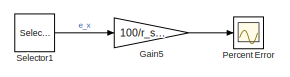
[diagram: root canvas - part 1/2, top right region]
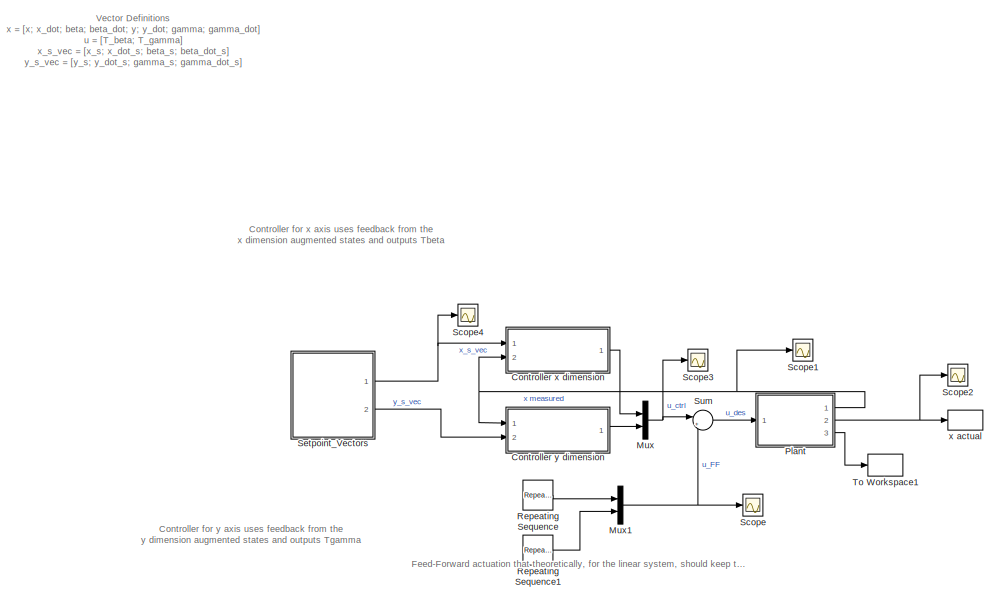
[diagram: root canvas - part 2/2, bottom left region]
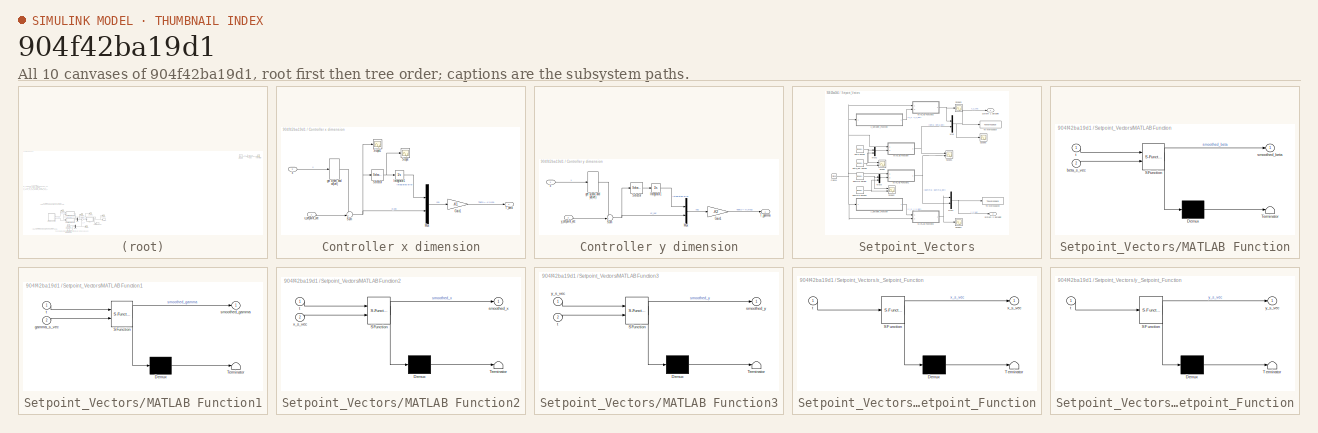
[diagram: thumbnail index - all 10 canvases of the model, root first then tree order]
MODEL slx_904f42ba19d1
KIND model
CONFIG AbsTol = auto
CONFIG EnableMultiTasking = off
CONFIG FixedStep = auto
CONFIG MaxStep = auto
CONFIG MinStep = auto
CONFIG RelTol = 1e-9
CONFIG SampleTimeConstraint = Unconstrained
CONFIG SolverName = VariableStepAuto
CONFIG StartTime = 0.0
CONFIG StopTime = t_sim
BLOCK [SubSystem] Controller x dimension
  Ports = [2, 1]
  RequestExecContextInheritance = off
BLOCK [Gain] Controller x dimension/Gain1
  Gain = -K1
  Multiplication = Matrix(K*u)
BLOCK [Integrator] Controller x dimension/Integrator1
  Ports = [1, 1]
BLOCK [Mux] Controller x dimension/Mux
  DisplayOption = bar
  Inputs = 2
  Ports = [2, 1]
BLOCK [Scope] Controller x dimension/Scope
  Floating = off
  NumInputPorts = 1
  Ports = [1]
  ScopeSpecificationString = Simulink.scopes.TimeScopeBlockCfg('CurrentConfiguration', extmgr.ConfigurationSet(extmgr.Configuration('Core','General UI',true),extmgr.Configuration('Core','Source UI',true),extmgr.Configuration('Sources','WiredSimulink',true,'DataLoggingVariableName','ScopeData1'),extmgr.Configuration('Visuals','Time Domain',true,'SerializedDisplays',{struct('MinYLimReal','-269.05253','MaxYLimReal','29.93535','Y...<+1421ch>
BLOCK [Scope] Controller x dimension/Scope1
  Floating = off
  NumInputPorts = 1
  Ports = [1]
  ScopeSpecificationString = Simulink.scopes.TimeScopeBlockCfg('CurrentConfiguration', extmgr.ConfigurationSet(extmgr.Configuration('Core','General UI',true),extmgr.Configuration('Core','Source UI',true),extmgr.Configuration('Sources','WiredSimulink',true,'DataLoggingVariableName','ScopeData3'),extmgr.Configuration('Visuals','Time Domain',true,'SerializedDisplays',{struct('MinYLimReal','-0.36432','MaxYLimReal','0.58765','YLab...<+1419ch>
BLOCK [Selector] Controller x dimension/Selector
  IndexOptions = Index vector (dialog)
  Indices = [1 ]
  InputPortWidth = 4
  OutputSizes = 1
  Ports = [1, 1]
BLOCK [Sum] Controller x dimension/Sum
  Inputs = -+|
  Ports = [2, 1]
BLOCK [Outport] Controller x dimension/T_beta
BLOCK [Selector] Controller x dimension/get x(pos) and xd(vel)
  IndexOptions = Index vector (dialog)
  Indices = [1:4]
  InputPortWidth = 8
  OutputSizes = 1
  Ports = [1, 1]
BLOCK [Inport] Controller x dimension/x
  Port = 2
BLOCK [Inport] Controller x dimension/x_setpoint_vec
BLOCK [SubSystem] Controller y dimension
  NameLocation = top
  Ports = [2, 1]
  RequestExecContextInheritance = off
BLOCK [Gain] Controller y dimension/Gain1
  Gain = -K2
  Multiplication = Matrix(K*u)
BLOCK [Integrator] Controller y dimension/Integrator1
  Ports = [1, 1]
BLOCK [Mux] Controller y dimension/Mux
  DisplayOption = bar
  Inputs = 2
  Ports = [2, 1]
BLOCK [Selector] Controller y dimension/Selector
  IndexOptions = Index vector (dialog)
  Indices = [1 ]
  InputPortWidth = 4
  OutputSizes = 1
  Ports = [1, 1]
BLOCK [Sum] Controller y dimension/Sum
  Inputs = -+|
  Ports = [2, 1]
BLOCK [Outport] Controller y dimension/T_gamma
BLOCK [Selector] Controller y dimension/get y(pos) and yd(vel)
  IndexOptions = Index vector (dialog)
  Indices = [5:8]
  InputPortWidth = 8
  OutputSizes = 1
  Ports = [1, 1]
BLOCK [Inport] Controller y dimension/x
BLOCK [Inport] Controller y dimension/y_setpoint_vec
  Port = 2
BLOCK [Gain] Gain5
  Commented = on
  Gain = 100/r_sim
BLOCK [Mux] Mux
  DisplayOption = bar
  Inputs = 2
  Ports = [2, 1]
BLOCK [Mux] Mux1
  DisplayOption = bar
  Inputs = 2
  Ports = [2, 1]
BLOCK [Scope] Percent Error
  Commented = on
  Floating = off
  NumInputPorts = 1
  Ports = [1]
  ScopeSpecificationString = Simulink.scopes.TimeScopeBlockCfg('CurrentConfiguration', extmgr.ConfigurationSet(extmgr.Configuration('Core','General UI',true),extmgr.Configuration('Core','Source UI',true),extmgr.Configuration('Sources','WiredSimulink',true,'DataLoggingVariableName','ScopeData2'),extmgr.Configuration('Visuals','Time Domain',true,'SerializedDisplays',{struct('MinYLimReal','-1.29449','MaxYLimReal','1.86814','YLab...<+1556ch>
BLOCK [ModelReference] Plant
  ModelNameDialog = Plant
  ModelReferenceVersion = 1.106
  Ports = [1, 3]
BLOCK [Reference] Repeating Sequence  REF=simulink/Sources/Repeating
Sequence
  Ports = [0, 1]
  SourceBlock = simulink/Sources/Repeating\nSequence
  SourceProductBaseCode = SL
  SourceType = Repeating table
BLOCK [Reference] Repeating Sequence1  REF=simulink/Sources/Repeating
Sequence
  Ports = [0, 1]
  SourceBlock = simulink/Sources/Repeating\nSequence
  SourceProductBaseCode = SL
  SourceType = Repeating table
BLOCK [Scope] Scope
  Floating = off
  NumInputPorts = 1
  Ports = [1]
  ScopeSpecificationString = Simulink.scopes.TimeScopeBlockCfg('CurrentConfiguration', extmgr.ConfigurationSet(extmgr.Configuration('Core','General UI',true),extmgr.Configuration('Core','Source UI',true),extmgr.Configuration('Sources','WiredSimulink',true,'DataLoggingVariableName','ScopeData1'),extmgr.Configuration('Visuals','Time Domain',true,'SerializedDisplays',{struct('MinYLimReal','-0.72111','MaxYLimReal','0.72111','YLab...<+1429ch>
BLOCK [Scope] Scope1
  Floating = off
  NumInputPorts = 1
  Ports = [1]
  ScopeSpecificationString = Simulink.scopes.TimeScopeBlockCfg('CurrentConfiguration', extmgr.ConfigurationSet(extmgr.Configuration('Core','General UI',true),extmgr.Configuration('Core','Source UI',true),extmgr.Configuration('Sources','WiredSimulink',true,'DataLoggingVariableName','ScopeData1'),extmgr.Configuration('Visuals','Time Domain',true,'SerializedDisplays',{struct('MinYLimReal','-87.01259','MaxYLimReal','28.66961','YL...<+1526ch>
BLOCK [Scope] Scope2
  Floating = off
  NumInputPorts = 1
  Ports = [1]
  ScopeSpecificationString = Simulink.scopes.TimeScopeBlockCfg('CurrentConfiguration', extmgr.ConfigurationSet(extmgr.Configuration('Core','General UI',true),extmgr.Configuration('Core','Source UI',true),extmgr.Configuration('Sources','WiredSimulink',true,'DataLoggingVariableName','ScopeData2'),extmgr.Configuration('Visuals','Time Domain',true,'SerializedDisplays',{struct('MinYLimReal','-0.50678','MaxYLimReal','0.55382','YLab...<+1459ch>
BLOCK [Scope] Scope3
  Floating = off
  NumInputPorts = 1
  Ports = [1]
  ScopeSpecificationString = Simulink.scopes.TimeScopeBlockCfg('CurrentConfiguration', extmgr.ConfigurationSet(extmgr.Configuration('Core','General UI',true),extmgr.Configuration('Core','Source UI',true),extmgr.Configuration('Sources','WiredSimulink',true,'DataLoggingVariableName','ScopeData4'),extmgr.Configuration('Visuals','Time Domain',true,'SerializedDisplays',{struct('MinYLimReal','-7.34684','MaxYLimReal','10.96364','YLa...<+1426ch>
BLOCK [Scope] Scope4
  Floating = off
  NumInputPorts = 1
  Ports = [1]
  ScopeSpecificationString = Simulink.scopes.TimeScopeBlockCfg('CurrentConfiguration', extmgr.ConfigurationSet(extmgr.Configuration('Core','General UI',true),extmgr.Configuration('Core','Source UI',true),extmgr.Configuration('Sources','WiredSimulink',true,'DataLoggingVariableName','ScopeData2'),extmgr.Configuration('Visuals','Time Domain',true,'SerializedDisplays',{struct('MinYLimReal','-0.62093','MaxYLimReal','0.61341','YLab...<+1446ch>
BLOCK [Selector] Selector1
  Commented = on
  IndexOptions = Index vector (dialog)
  Indices = [1]
  InputPortWidth = 5
  OutputSizes = 1
  Ports = [1, 1]
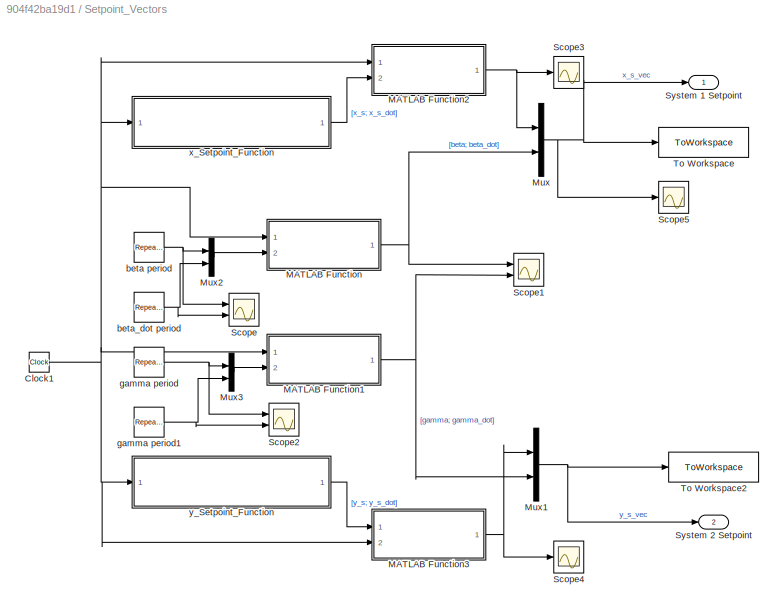
BLOCK [SubSystem] Setpoint_Vectors
  Ports = [0, 2]
  RequestExecContextInheritance = off
BLOCK [Clock] Setpoint_Vectors/Clock1
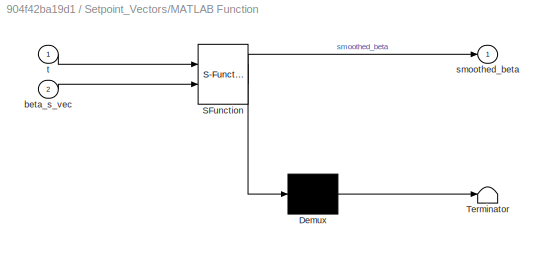
BLOCK [SubSystem] Setpoint_Vectors/MATLAB Function
  ErrorFcn = Stateflow.Translate.translate
  PermitHierarchicalResolution = ExplicitOnly
  Ports = [2, 1]
  RequestExecContextInheritance = off
  SFBlockType = MATLAB Function
  TreatAsAtomicUnit = on
BLOCK [Demux] Setpoint_Vectors/MATLAB Function/ Demux 
  Outputs = 1
  Ports = [1, 1]
BLOCK [S-Function] Setpoint_Vectors/MATLAB Function/ SFunction 
  EnableBusSupport = on
  FunctionName = sf_sfun
  Parameters = Tau,x_0
  PortCounts = [2 2]
  Ports = [2, 2]
  SFcnIsStateOwnerBlock = off
  SFunctionDeploymentMode = off
  Tag = Stateflow S-Function 1
BLOCK [Terminator] Setpoint_Vectors/MATLAB Function/ Terminator 
BLOCK [Inport] Setpoint_Vectors/MATLAB Function/beta_s_vec
  Port = 2
BLOCK [Outport] Setpoint_Vectors/MATLAB Function/smoothed_beta
BLOCK [Inport] Setpoint_Vectors/MATLAB Function/t
BLOCK [SubSystem] Setpoint_Vectors/MATLAB Function1
  ErrorFcn = Stateflow.Translate.translate
  PermitHierarchicalResolution = ExplicitOnly
  Ports = [2, 1]
  RequestExecContextInheritance = off
  SFBlockType = MATLAB Function
  TreatAsAtomicUnit = on
BLOCK [Demux] Setpoint_Vectors/MATLAB Function1/ Demux 
  Outputs = 1
  Ports = [1, 1]
BLOCK [S-Function] Setpoint_Vectors/MATLAB Function1/ SFunction 
  EnableBusSupport = on
  FunctionName = sf_sfun
  Parameters = Tau,x_0
  PortCounts = [2 2]
  Ports = [2, 2]
  SFcnIsStateOwnerBlock = off
  SFunctionDeploymentMode = off
  Tag = Stateflow S-Function 4
BLOCK [Terminator] Setpoint_Vectors/MATLAB Function1/ Terminator 
BLOCK [Inport] Setpoint_Vectors/MATLAB Function1/gamma_s_vec
  Port = 2
BLOCK [Outport] Setpoint_Vectors/MATLAB Function1/smoothed_gamma
BLOCK [Inport] Setpoint_Vectors/MATLAB Function1/t
BLOCK [SubSystem] Setpoint_Vectors/MATLAB Function2
  ErrorFcn = Stateflow.Translate.translate
  PermitHierarchicalResolution = ExplicitOnly
  Ports = [2, 1]
  RequestExecContextInheritance = off
  SFBlockType = MATLAB Function
  TreatAsAtomicUnit = on
BLOCK [Demux] Setpoint_Vectors/MATLAB Function2/ Demux 
  Outputs = 1
  Ports = [1, 1]
BLOCK [S-Function] Setpoint_Vectors/MATLAB Function2/ SFunction 
  EnableBusSupport = on
  FunctionName = sf_sfun
  Parameters = Tau,x_0
  PortCounts = [2 2]
  Ports = [2, 2]
  SFcnIsStateOwnerBlock = off
  SFunctionDeploymentMode = off
  Tag = Stateflow S-Function 6
BLOCK [Terminator] Setpoint_Vectors/MATLAB Function2/ Terminator 
BLOCK [Outport] Setpoint_Vectors/MATLAB Function2/smoothed_x
BLOCK [Inport] Setpoint_Vectors/MATLAB Function2/t
BLOCK [Inport] Setpoint_Vectors/MATLAB Function2/x_s_vec
  Port = 2
BLOCK [SubSystem] Setpoint_Vectors/MATLAB Function3
  ErrorFcn = Stateflow.Translate.translate
  PermitHierarchicalResolution = ExplicitOnly
  Ports = [2, 1]
  RequestExecContextInheritance = off
  SFBlockType = MATLAB Function
  TreatAsAtomicUnit = on
BLOCK [Demux] Setpoint_Vectors/MATLAB Function3/ Demux 
  Outputs = 1
  Ports = [1, 1]
BLOCK [S-Function] Setpoint_Vectors/MATLAB Function3/ SFunction 
  EnableBusSupport = on
  FunctionName = sf_sfun
  Parameters = Tau,x_0
  PortCounts = [2 2]
  Ports = [2, 2]
  SFcnIsStateOwnerBlock = off
  SFunctionDeploymentMode = off
  Tag = Stateflow S-Function 7
BLOCK [Terminator] Setpoint_Vectors/MATLAB Function3/ Terminator 
BLOCK [Outport] Setpoint_Vectors/MATLAB Function3/smoothed_y
BLOCK [Inport] Setpoint_Vectors/MATLAB Function3/t
  Port = 2
BLOCK [Inport] Setpoint_Vectors/MATLAB Function3/y_s_vec
BLOCK [Mux] Setpoint_Vectors/Mux
  DisplayOption = bar
  Inputs = 2
  Ports = [2, 1]
BLOCK [Mux] Setpoint_Vectors/Mux1
  DisplayOption = bar
  Inputs = 2
  Ports = [2, 1]
BLOCK [Mux] Setpoint_Vectors/Mux2
  DisplayOption = bar
  Inputs = 2
  Ports = [2, 1]
BLOCK [Mux] Setpoint_Vectors/Mux3
  DisplayOption = bar
  Inputs = 2
  Ports = [2, 1]
BLOCK [Scope] Setpoint_Vectors/Scope
  Floating = off
  NumInputPorts = 2
  Ports = [2]
  ScopeSpecificationString = Simulink.scopes.TimeScopeBlockCfg('CurrentConfiguration', extmgr.ConfigurationSet(extmgr.Configuration('Core','General UI',true),extmgr.Configuration('Core','Source UI',true),extmgr.Configuration('Sources','WiredSimulink',true,'DataLoggingVariableName','ScopeData1'),extmgr.Configuration('Visuals','Time Domain',true,'SerializedDisplays',{struct('MinYLimReal','-0.62223','MaxYLimReal','0.62223','YLab...<+1413ch>
BLOCK [Scope] Setpoint_Vectors/Scope1
  Floating = off
  NumInputPorts = 2
  Ports = [2]
  ScopeSpecificationString = Simulink.scopes.TimeScopeBlockCfg('CurrentConfiguration', extmgr.ConfigurationSet(extmgr.Configuration('Core','General UI',true),extmgr.Configuration('Core','Source UI',true),extmgr.Configuration('Sources','WiredSimulink',true,'DataLoggingVariableName','ScopeData2'),extmgr.Configuration('Visuals','Time Domain',true,'SerializedDisplays',{struct('MinYLimReal','-0.63632','MaxYLimReal','0.63632','YLab...<+1499ch>
BLOCK [Scope] Setpoint_Vectors/Scope2
  Floating = off
  NumInputPorts = 2
  Ports = [2]
  ScopeSpecificationString = Simulink.scopes.TimeScopeBlockCfg('CurrentConfiguration', extmgr.ConfigurationSet(extmgr.Configuration('Core','General UI',true),extmgr.Configuration('Core','Source UI',true),extmgr.Configuration('Sources','WiredSimulink',true,'DataLoggingVariableName','ScopeData3'),extmgr.Configuration('Visuals','Time Domain',true,'SerializedDisplays',{struct('MinYLimReal','-0.63632','MaxYLimReal','0.63632','YLab...<+1412ch>
BLOCK [Scope] Setpoint_Vectors/Scope3
  Floating = off
  NumInputPorts = 1
  Ports = [1]
  ScopeSpecificationString = Simulink.scopes.TimeScopeBlockCfg('CurrentConfiguration', extmgr.ConfigurationSet(extmgr.Configuration('Core','General UI',true),extmgr.Configuration('Core','Source UI',true),extmgr.Configuration('Sources','WiredSimulink',true,'DataLoggingVariableName','ScopeData5'),extmgr.Configuration('Visuals','Time Domain',true,'SerializedDisplays',{struct('MinYLimReal','-0.41394','MaxYLimReal','0.41394','YLab...<+1398ch>
BLOCK [Scope] Setpoint_Vectors/Scope4
  Floating = off
  NumInputPorts = 1
  Ports = [1]
  ScopeSpecificationString = Simulink.scopes.TimeScopeBlockCfg('CurrentConfiguration', extmgr.ConfigurationSet(extmgr.Configuration('Core','General UI',true),extmgr.Configuration('Core','Source UI',true),extmgr.Configuration('Sources','WiredSimulink',true,'DataLoggingVariableName','ScopeData1'),extmgr.Configuration('Visuals','Time Domain',true,'SerializedDisplays',{struct('MinYLimReal','-0.47124','MaxYLimReal','0.47124','YLab...<+1453ch>
BLOCK [Scope] Setpoint_Vectors/Scope5
  Floating = off
  NumInputPorts = 1
  Ports = [1]
  ScopeSpecificationString = Simulink.scopes.TimeScopeBlockCfg('CurrentConfiguration', extmgr.ConfigurationSet(extmgr.Configuration('Core','General UI',true),extmgr.Configuration('Core','Source UI',true),extmgr.Configuration('Sources','WiredSimulink',true,'DataLoggingVariableName','ScopeData3'),extmgr.Configuration('Visuals','Time Domain',true,'SerializedDisplays',{struct('MinYLimReal','-0.41394','MaxYLimReal','0.41394','YLab...<+1398ch>
BLOCK [Outport] Setpoint_Vectors/System 1 Setpoint
BLOCK [Outport] Setpoint_Vectors/System 2 Setpoint
  Port = 2
BLOCK [ToWorkspace] Setpoint_Vectors/To Workspace
  FixptAsFi = on
  MaxDataPoints = inf
  Ports = [1]
  SampleTime = -1
  VariableName = x_s_vec
BLOCK [ToWorkspace] Setpoint_Vectors/To Workspace2
  FixptAsFi = on
  MaxDataPoints = inf
  Ports = [1]
  SampleTime = -1
  VariableName = y_s_vec
BLOCK [Reference] Setpoint_Vectors/beta period  REF=simulink/Sources/Repeating
Sequence
  Ports = [0, 1]
  SourceBlock = simulink/Sources/Repeating\nSequence
  SourceProductBaseCode = SL
  SourceType = Repeating table
BLOCK [Reference] Setpoint_Vectors/beta_dot period  REF=simulink/Sources/Repeating
Sequence
  Ports = [0, 1]
  SourceBlock = simulink/Sources/Repeating\nSequence
  SourceProductBaseCode = SL
  SourceType = Repeating table
BLOCK [Reference] Setpoint_Vectors/gamma period  REF=simulink/Sources/Repeating
Sequence
  Ports = [0, 1]
  SourceBlock = simulink/Sources/Repeating\nSequence
  SourceProductBaseCode = SL
  SourceType = Repeating table
BLOCK [Reference] Setpoint_Vectors/gamma period1  REF=simulink/Sources/Repeating
Sequence
  Ports = [0, 1]
  SourceBlock = simulink/Sources/Repeating\nSequence
  SourceProductBaseCode = SL
  SourceType = Repeating table
BLOCK [SubSystem] Setpoint_Vectors/x_Setpoint_Function
  ErrorFcn = Stateflow.Translate.translate
  PermitHierarchicalResolution = ExplicitOnly
  Ports = [1, 1]
  RequestExecContextInheritance = off
  SFBlockType = MATLAB Function
  TreatAsAtomicUnit = on
BLOCK [Demux] Setpoint_Vectors/x_Setpoint_Function/ Demux 
  Outputs = 1
  Ports = [1, 1]
BLOCK [S-Function] Setpoint_Vectors/x_Setpoint_Function/ SFunction 
  EnableBusSupport = on
  FunctionName = sf_sfun
  PortCounts = [1 2]
  Ports = [1, 2]
  SFcnIsStateOwnerBlock = off
  SFunctionDeploymentMode = off
  Tag = Stateflow S-Function 2
BLOCK [Terminator] Setpoint_Vectors/x_Setpoint_Function/ Terminator 
BLOCK [Inport] Setpoint_Vectors/x_Setpoint_Function/t
BLOCK [Outport] Setpoint_Vectors/x_Setpoint_Function/x_s_vec
BLOCK [SubSystem] Setpoint_Vectors/y_Setpoint_Function
  ErrorFcn = Stateflow.Translate.translate
  PermitHierarchicalResolution = ExplicitOnly
  Ports = [1, 1]
  RequestExecContextInheritance = off
  SFBlockType = MATLAB Function
  TreatAsAtomicUnit = on
BLOCK [Demux] Setpoint_Vectors/y_Setpoint_Function/ Demux 
  Outputs = 1
  Ports = [1, 1]
BLOCK [S-Function] Setpoint_Vectors/y_Setpoint_Function/ SFunction 
  EnableBusSupport = on
  FunctionName = sf_sfun
  PortCounts = [1 2]
  Ports = [1, 2]
  SFcnIsStateOwnerBlock = off
  SFunctionDeploymentMode = off
  Tag = Stateflow S-Function 3
BLOCK [Terminator] Setpoint_Vectors/y_Setpoint_Function/ Terminator 
BLOCK [Inport] Setpoint_Vectors/y_Setpoint_Function/t
BLOCK [Outport] Setpoint_Vectors/y_Setpoint_Function/y_s_vec
BLOCK [Sum] Sum
  Inputs = |++
  Ports = [2, 1]
BLOCK [ToWorkspace] To Workspace1
  FixptAsFi = on
  MaxDataPoints = inf
  Ports = [1]
  SampleTime = -1
  VariableName = u
BLOCK [ToWorkspace] x actual
  FixptAsFi = on
  MaxDataPoints = inf
  Ports = [1]
  SampleTime = -1
  VariableName = x
ANNOTATION (root): Vector Definitions x = [x; x_dot; beta; beta_dot; y; y_dot; gamma; gamma_dot] u = [T_beta; T_gamma] x_s_vec = [x_s; x_dot_s; beta_s; beta_dot_s ] y_s_vec = [y_s; y_dot_s; gamma_s; gamma_dot_s ]
ANNOTATION (root): Controller for x axis uses feedback from the x dimension augmented states and outputs Tbeta
ANNOTATION (root): Controller for y axis uses feedback from the y dimension augmented states and outputs Tgamma
ANNOTATION (root): Feed-Forward actuation that theoretically, for the linear system, should keep the system on the setpoint if it's there already
LINE Controller x dimension/Gain1:1 -> Controller x dimension/T_beta:1
LINE Controller x dimension/Integrator1:1 -> Controller x dimension/Mux:1
LINE Controller x dimension/Mux:1 -> Controller x dimension/Gain1:1
NET Controller x dimension/Selector:1 -> Controller x dimension/Integrator1:1, Controller x dimension/Scope:1
NET Controller x dimension/Sum:1 -> Controller x dimension/Mux:2, Controller x dimension/Scope1:1, Controller x dimension/Selector:1
LINE Controller x dimension/get x(pos) and xd(vel):1 -> Controller x dimension/Sum:1
LINE Controller x dimension/x:1 -> Controller x dimension/get x(pos) and xd(vel):1
LINE Controller x dimension/x_setpoint_vec:1 -> Controller x dimension/Sum:2
LINE Controller x dimension:1 -> Mux:1
LINE Controller y dimension/Gain1:1 -> Controller y dimension/T_gamma:1
LINE Controller y dimension/Integrator1:1 -> Controller y dimension/Mux:1
LINE Controller y dimension/Mux:1 -> Controller y dimension/Gain1:1
LINE Controller y dimension/Selector:1 -> Controller y dimension/Integrator1:1
NET Controller y dimension/Sum:1 -> Controller y dimension/Mux:2, Controller y dimension/Selector:1
LINE Controller y dimension/get y(pos) and yd(vel):1 -> Controller y dimension/Sum:1
LINE Controller y dimension/x:1 -> Controller y dimension/get y(pos) and yd(vel):1
LINE Controller y dimension/y_setpoint_vec:1 -> Controller y dimension/Sum:2
LINE Controller y dimension:1 -> Mux:2
LINE Gain5:1 -> Percent Error:1
NET Mux1:1 -> Scope:1, Sum:2
NET Mux:1 -> Scope3:1, Sum:1
NET Plant:1 -> Controller x dimension:2, Controller y dimension:1, Scope1:1
NET Plant:2 -> Scope2:1, x actual:1
LINE Plant:3 -> To Workspace1:1
LINE Repeating Sequence1:1 -> Mux1:2
LINE Repeating Sequence:1 -> Mux1:1
LINE Selector1:1 -> Gain5:1
NET Setpoint_Vectors/Clock1:1 -> Setpoint_Vectors/MATLAB Function1:1, Setpoint_Vectors/MATLAB Function2:1, Setpoint_Vectors/MATLAB Function3:2, Setpoint_Vectors/MATLAB Function:1, Setpoint_Vectors/x_Setpoint_Function:1, Setpoint_Vectors/y_Setpoint_Function:1
NET Setpoint_Vectors/MATLAB Function1:1 -> Setpoint_Vectors/Mux1:2, Setpoint_Vectors/Scope1:2
NET Setpoint_Vectors/MATLAB Function2:1 -> Setpoint_Vectors/Mux:1, Setpoint_Vectors/Scope3:1
NET Setpoint_Vectors/MATLAB Function3:1 -> Setpoint_Vectors/Mux1:1, Setpoint_Vectors/Scope4:1
NET Setpoint_Vectors/MATLAB Function:1 -> Setpoint_Vectors/Mux:2, Setpoint_Vectors/Scope1:1
NET Setpoint_Vectors/Mux1:1 -> Setpoint_Vectors/System 2 Setpoint:1, Setpoint_Vectors/To Workspace2:1
LINE Setpoint_Vectors/Mux2:1 -> Setpoint_Vectors/MATLAB Function:2
LINE Setpoint_Vectors/Mux3:1 -> Setpoint_Vectors/MATLAB Function1:2
NET Setpoint_Vectors/Mux:1 -> Setpoint_Vectors/Scope5:1, Setpoint_Vectors/System 1 Setpoint:1, Setpoint_Vectors/To Workspace:1
NET Setpoint_Vectors/beta period:1 -> Setpoint_Vectors/Mux2:1, Setpoint_Vectors/Scope:1
NET Setpoint_Vectors/beta_dot period:1 -> Setpoint_Vectors/Mux2:2, Setpoint_Vectors/Scope:2
NET Setpoint_Vectors/gamma period1:1 -> Setpoint_Vectors/Mux3:2, Setpoint_Vectors/Scope2:2
NET Setpoint_Vectors/gamma period:1 -> Setpoint_Vectors/Mux3:1, Setpoint_Vectors/Scope2:1
LINE Setpoint_Vectors/x_Setpoint_Function:1 -> Setpoint_Vectors/MATLAB Function2:2
LINE Setpoint_Vectors/y_Setpoint_Function:1 -> Setpoint_Vectors/MATLAB Function3:1
NET Setpoint_Vectors:1 -> Controller x dimension:1, Scope4:1
LINE Setpoint_Vectors:2 -> Controller y dimension:2
LINE Sum:1 -> Plant:1
note: NET lines group one-source signal fan-out (src -> all destinations, sorted); 1:1 wires keep LINE
CHART Setpoint_Vectors/MATLAB Function states=1 transitions=1
  STATE_LABEL 'eML_blk_kernel()'
  STATE_LABEL 'SCRIPT:\nfunction smoothed_beta = fcn(t, beta_s_vec, Tau, x_0)\n\nsmoothed_beta = beta_s_vec*(1-exp(-t/Tau)) + x_0([3,4])*exp(-t/Tau);\n'
CHART Setpoint_Vectors/x_Setpoint_Function states=1 transitions=1
  STATE_LABEL 'eML_blk_kernel()'
  STATE_LABEL 'SCRIPT:\nfunction x_s_vec = x_s_vec(t)\n%#codegen\n\n%    This function was generated by the Symbolic Math Toolbox version 9.0.\n%    15-Mar-2022 23:03:39\n\nt2 = t.*pi.*(4.0./7.0);\nt3 = t.*pi.*(1.2e+1./7.0);\nx_s_vec = [cos(t2).*(3.0./4.0e+1)+cos(t3).*(3.0./4.0e+1);pi.*sin(t2).*(-3.0./7.0e+1)-pi.*sin(t3).*(9.0./7.0e+1)];\n'
CHART Setpoint_Vectors/y_Setpoint_Function states=1 transitions=1
  STATE_LABEL 'eML_blk_kernel()'
  STATE_LABEL 'SCRIPT:\nfunction y_s_vec = y_s_vec(t)\n%#codegen\n\n%    This function was generated by the Symbolic Math Toolbox version 9.0.\n%    15-Mar-2022 23:03:40\n\nt2 = t.*pi.*(4.0./7.0);\nt3 = t.*pi.*(1.2e+1./7.0);\ny_s_vec = [sin(t2).*(-3.0./4.0e+1)+sin(t3).*(3.0./4.0e+1);pi.*cos(t2).*(-3.0./7.0e+1)+pi.*cos(t3).*(9.0./7.0e+1)];\n'
CHART Setpoint_Vectors/MATLAB Function1 states=1 transitions=1
  STATE_LABEL 'eML_blk_kernel()'
  STATE_LABEL 'SCRIPT:\nfunction smoothed_gamma = fcn(t, gamma_s_vec, Tau, x_0)\n\nsmoothed_gamma = gamma_s_vec*(1-exp(-t/Tau)) + x_0([7,8])*exp(-t/Tau);\n'
CHART Setpoint_Vectors/MATLAB Function2 states=1 transitions=1
  STATE_LABEL 'eML_blk_kernel()'
  STATE_LABEL 'SCRIPT:\nfunction smoothed_x = fcn(t,x_s_vec, Tau, x_0)\n\nsmoothed_x = x_s_vec*(1-exp(-t/Tau)) + x_0([1,2])*exp(-t/Tau);\n'
CHART Setpoint_Vectors/MATLAB Function3 states=1 transitions=1
  STATE_LABEL 'eML_blk_kernel()'
  STATE_LABEL 'SCRIPT:\nfunction smoothed_y = fcn(y_s_vec,t, Tau, x_0)\n\nsmoothed_y = y_s_vec*(1-exp(-t/Tau)) + x_0([5,6])*exp(-t/Tau);\n'
CHART  states=0 transitions=0
CHART  states=0 transitions=0
CHART  states=0 transitions=0
CHART  states=0 transitions=0
CHART  states=0 transitions=0
CHART  states=0 transitions=0
